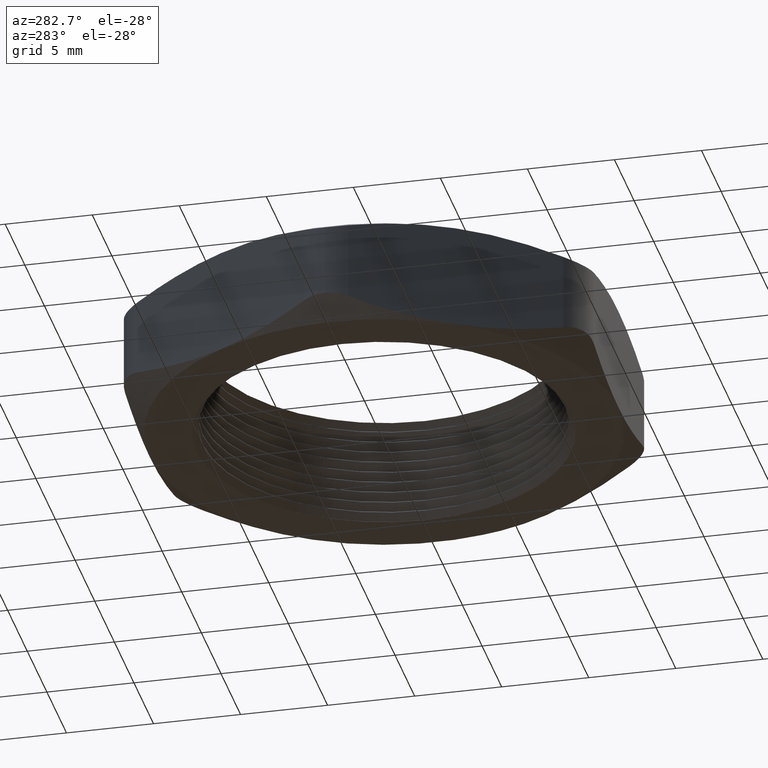
[diagram: clean part render]
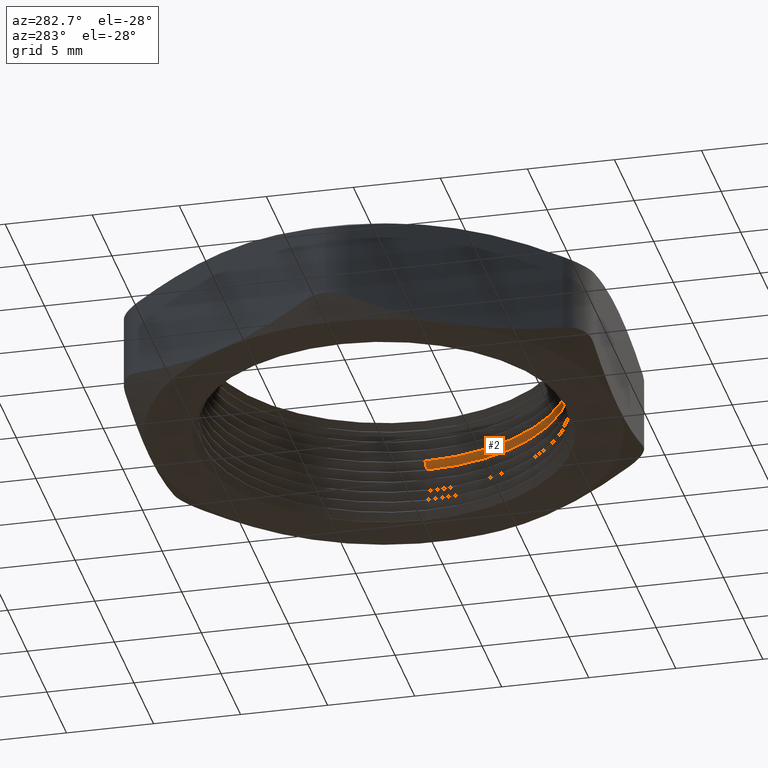
[diagram: same view with one face highlighted and labeled with its STEP entity id]
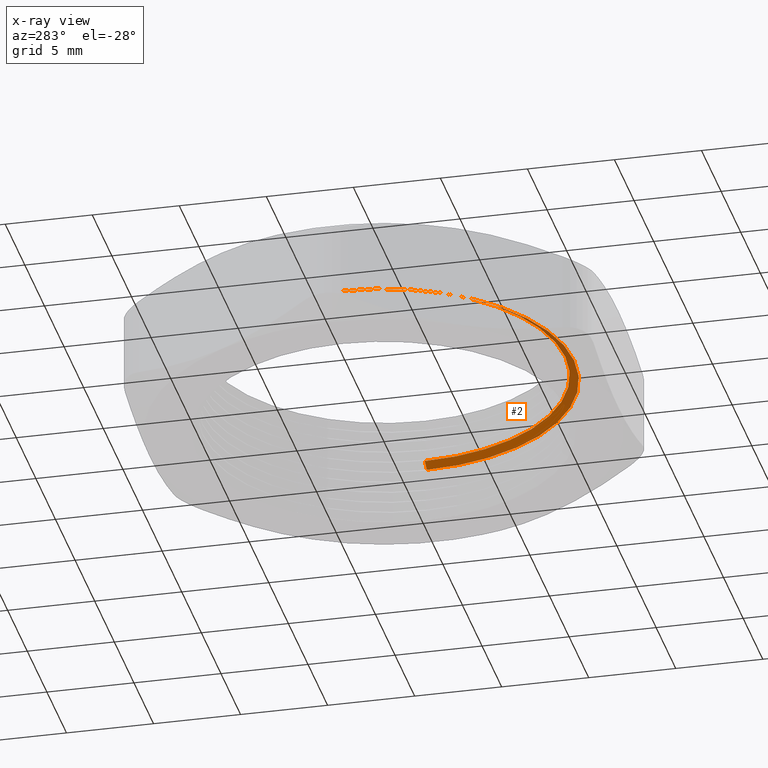
[diagram: x-ray of the same camera — body ghosted, the highlighted face saturated]
A machine part, auxiliary view. The second image highlights one B-rep face of the part: STEP entity #2.
The next image is the same camera in x-ray: the body ghosted, the highlighted face saturated — about 31% of this face is hidden behind the body in this view.
In plain terms, the highlighted conical surface has half-angle 60 deg.
Its self-contained STEP definition (entity closure, byte-faithful):
#2 = ADVANCED_FACE ( 'NONE', ( #806 ), #804, .F. ) ;
#3 = EDGE_CURVE ( 'NONE', #7, #4, #799, .T. ) ;
#4 = VERTEX_POINT ( 'NONE', #795 ) ;
#7 = VERTEX_POINT ( 'NONE', #794 ) ;
#794 = CARTESIAN_POINT ( 'NONE',  ( -0.4299999999999999900, 0.0000000000000000000, 0.1284529946162077400 ) ) ;
#795 = CARTESIAN_POINT ( 'NONE',  ( 0.4299999999999999900, 5.265981236333618200E-017, 0.1284529946162077400 ) ) ;
#796 = DIRECTION ( 'NONE',  ( 1.000000000000000000, 0.0000000000000000000, 0.0000000000000000000 ) ) ;
#797 = DIRECTION ( 'NONE',  ( 0.0000000000000000000, 0.0000000000000000000, 1.000000000000000000 ) ) ;
#798 = AXIS2_PLACEMENT_3D ( 'NONE', #805, #797, #796 ) ;
#799 = CIRCLE ( 'NONE', #798, 0.4299999999999999900 ) ;
#800 = DIRECTION ( 'NONE',  ( -1.000000000000000000, 0.0000000000000000000, 0.0000000000000000000 ) ) ;
#801 = DIRECTION ( 'NONE',  ( 0.0000000000000000000, 0.0000000000000000000, -1.000000000000000000 ) ) ;
#802 = CARTESIAN_POINT ( 'NONE',  ( 0.0000000000000000000, 0.0000000000000000000, 0.1284529946162077400 ) ) ;
#803 = AXIS2_PLACEMENT_3D ( 'NONE', #802, #801, #800 ) ;
#804 = CONICAL_SURFACE ( 'NONE', #803, 0.4299999999999999900, 1.047197551196607600 ) ;
#805 = CARTESIAN_POINT ( 'NONE',  ( 0.0000000000000000000, 0.0000000000000000000, 0.1284529946162077400 ) ) ;
#806 = FACE_OUTER_BOUND ( 'NONE', #2520, .T. ) ;
#2404 = CARTESIAN_POINT ( 'NONE',  ( 0.4099999999999999800, 5.021051876504147500E-017, 0.1399999999999999900 ) ) ;
#2405 = CARTESIAN_POINT ( 'NONE',  ( -0.4099999999999999800, 0.0000000000000000000, 0.1399999999999999900 ) ) ;
#2406 = DIRECTION ( 'NONE',  ( 1.000000000000000000, 0.0000000000000000000, 0.0000000000000000000 ) ) ;
#2407 = DIRECTION ( 'NONE',  ( 0.0000000000000000000, 0.0000000000000000000, 1.000000000000000000 ) ) ;
#2408 = CARTESIAN_POINT ( 'NONE',  ( 0.0000000000000000000, 0.0000000000000000000, 0.1399999999999999900 ) ) ;
#2409 = AXIS2_PLACEMENT_3D ( 'NONE', #2408, #2407, #2406 ) ;
#2410 = CIRCLE ( 'NONE', #2409, 0.4099999999999999800 ) ;
#2411 = DIRECTION ( 'NONE',  ( 0.8660254037844434800, 1.060575238724912700E-016, -0.4999999999999913400 ) ) ;
#2412 = VECTOR ( 'NONE', #2411, 39.37007874015748900 ) ;
#2413 = CARTESIAN_POINT ( 'NONE',  ( 0.4299999999999999900, 5.265981236333618200E-017, 0.1284529946162077400 ) ) ;
#2414 = LINE ( 'NONE', #2413, #2412 ) ;
#2415 = DIRECTION ( 'NONE',  ( -0.8660254037844434800, 0.0000000000000000000, -0.4999999999999913400 ) ) ;
#2416 = VECTOR ( 'NONE', #2415, 39.37007874015748900 ) ;
#2417 = CARTESIAN_POINT ( 'NONE',  ( -0.4299999999999999900, 0.0000000000000000000, 0.1284529946162077400 ) ) ;
#2418 = LINE ( 'NONE', #2417, #2416 ) ;
#2519 = ORIENTED_EDGE ( 'NONE', *, *, #2536, .T. ) ;
#2520 = EDGE_LOOP ( 'NONE', ( #2519, #2537, #2532, #2533 ) ) ;
#2532 = ORIENTED_EDGE ( 'NONE', *, *, #3, .F. ) ;
#2533 = ORIENTED_EDGE ( 'NONE', *, *, #2534, .F. ) ;
#2534 = EDGE_CURVE ( 'NONE', #2538, #7, #2418, .T. ) ;
#2535 = EDGE_CURVE ( 'NONE', #2539, #4, #2414, .T. ) ;
#2536 = EDGE_CURVE ( 'NONE', #2538, #2539, #2410, .T. ) ;
#2537 = ORIENTED_EDGE ( 'NONE', *, *, #2535, .T. ) ;
#2538 = VERTEX_POINT ( 'NONE', #2405 ) ;
#2539 = VERTEX_POINT ( 'NONE', #2404 ) ;